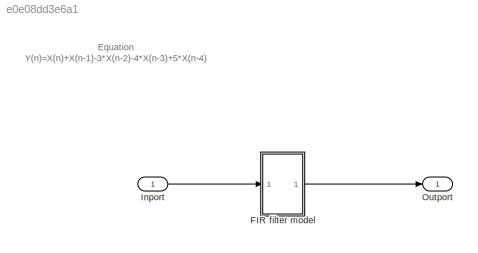
MODEL slx_e0e08dd3e6a1
KIND model
CONFIG AbsTol = auto
CONFIG EnableMultiTasking = off
CONFIG FixedStep = auto
CONFIG MaxStep = auto
CONFIG MinStep = auto
CONFIG RelTol = 1e-3
CONFIG SampleTimeConstraint = Unconstrained
CONFIG SolverName = VariableStepAuto
CONFIG StartTime = 0.0
CONFIG StopTime = 30
BLOCK [ModelReference] FIR filter model
  ModelNameDialog = FIR_filter_model
  ModelReferenceVersion = 1.3
  Ports = [1, 1]
BLOCK [Inport] Inport
BLOCK [Outport] Outport
ANNOTATION (root): Equation Y(n)=X(n)+X(n-1)-3*X(n-2)-4*X(n-3)+5*X(n-4)
LINE FIR filter model:1 -> Outport:1
LINE Inport:1 -> FIR filter model:1
